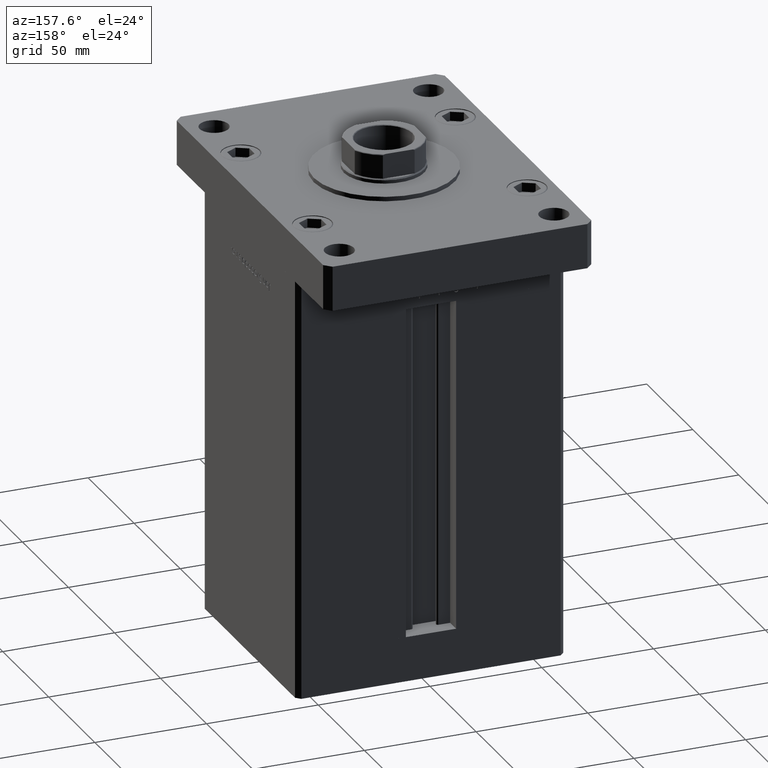
[diagram: clean part render]
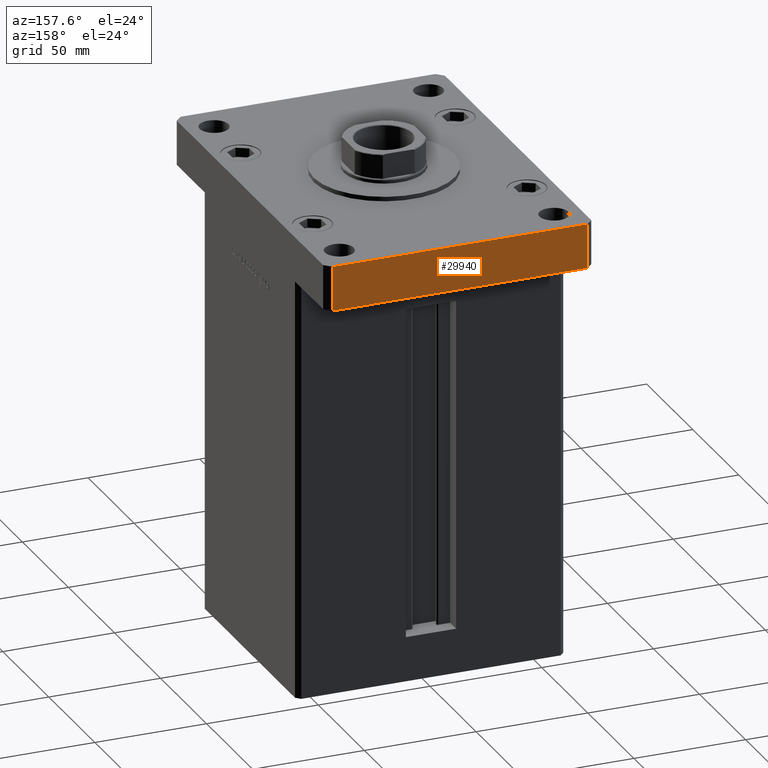
[diagram: same view with one face highlighted and labeled with its STEP entity id]
A machine part, auxiliary view. The second image highlights one B-rep face of the part: STEP entity #29940.
In plain terms, the highlighted planar face has unit normal (0, -1, 0).
Its self-contained STEP definition (entity closure, byte-faithful):
#6 = VECTOR ( 'NONE', #22627, 1000.000000000000000 ) ;
#460 = ORIENTED_EDGE ( 'NONE', *, *, #16832, .T. ) ;
#1599 = VERTEX_POINT ( 'NONE', #27948 ) ;
#1986 = DIRECTION ( 'NONE',  ( -0.000000000000000000, -0.000000000000000000, -1.000000000000000000 ) ) ;
#4120 = EDGE_CURVE ( 'NONE', #32782, #24047, #16553, .T. ) ;
#6539 = EDGE_CURVE ( 'NONE', #32782, #16891, #14512, .T. ) ;
#9714 = ORIENTED_EDGE ( 'NONE', *, *, #28668, .F. ) ;
#14512 = LINE ( 'NONE', #22670, #33188 ) ;
#15034 = ORIENTED_EDGE ( 'NONE', *, *, #6539, .T. ) ;
#15095 = PLANE ( 'NONE',  #41783 ) ;
#15267 = CARTESIAN_POINT ( 'NONE',  ( -57.00000000000003553, 82.50000000000000000, 20.00000000000000000 ) ) ;
#15627 = FACE_OUTER_BOUND ( 'NONE', #43064, .T. ) ;
#16553 = LINE ( 'NONE', #49495, #28000 ) ;
#16832 = EDGE_CURVE ( 'NONE', #16891, #1599, #42835, .T. ) ;
#16891 = VERTEX_POINT ( 'NONE', #28631 ) ;
#20907 = CARTESIAN_POINT ( 'NONE',  ( -57.00000000000003553, 82.50000000000000000, 20.00000000000000000 ) ) ;
#22627 = DIRECTION ( 'NONE',  ( -0.000000000000000000, -0.000000000000000000, -1.000000000000000000 ) ) ;
#22670 = CARTESIAN_POINT ( 'NONE',  ( 57.00000000000002132, 82.50000000000002842, 20.00000000000000000 ) ) ;
#23910 = DIRECTION ( 'NONE',  ( -1.000000000000000000, -2.434699615406043739E-16, 0.000000000000000000 ) ) ;
#24047 = VERTEX_POINT ( 'NONE', #20907 ) ;
#26705 = LINE ( 'NONE', #15267, #6 ) ;
#27948 = CARTESIAN_POINT ( 'NONE',  ( -57.00000000000003553, 82.50000000000000000, 0.000000000000000000 ) ) ;
#28000 = VECTOR ( 'NONE', #23910, 1000.000000000000000 ) ;
#28631 = CARTESIAN_POINT ( 'NONE',  ( 57.00000000000002132, 82.50000000000002842, 0.000000000000000000 ) ) ;
#28668 = EDGE_CURVE ( 'NONE', #24047, #1599, #26705, .T. ) ;
#29940 = ADVANCED_FACE ( 'NONE', ( #15627 ), #15095, .F. ) ;
#31696 = CARTESIAN_POINT ( 'NONE',  ( 57.00000000000002132, 82.50000000000002842, 20.00000000000000000 ) ) ;
#32226 = DIRECTION ( 'NONE',  ( 1.000000000000000000, 2.434699615406043739E-16, 0.000000000000000000 ) ) ;
#32782 = VERTEX_POINT ( 'NONE', #44809 ) ;
#33188 = VECTOR ( 'NONE', #1986, 1000.000000000000000 ) ;
#36564 = DIRECTION ( 'NONE',  ( 2.434699615406043739E-16, -1.000000000000000000, 0.000000000000000000 ) ) ;
#38743 = CARTESIAN_POINT ( 'NONE',  ( 57.00000000000002132, 82.50000000000002842, 0.000000000000000000 ) ) ;
#41783 = AXIS2_PLACEMENT_3D ( 'NONE', #31696, #36564, #32226 ) ;
#42835 = LINE ( 'NONE', #38743, #52785 ) ;
#43064 = EDGE_LOOP ( 'NONE', ( #460, #9714, #45483, #15034 ) ) ;
#44809 = CARTESIAN_POINT ( 'NONE',  ( 57.00000000000002132, 82.50000000000002842, 20.00000000000000000 ) ) ;
#45483 = ORIENTED_EDGE ( 'NONE', *, *, #4120, .F. ) ;
#49495 = CARTESIAN_POINT ( 'NONE',  ( 57.00000000000002132, 82.50000000000002842, 20.00000000000000000 ) ) ;
#51010 = DIRECTION ( 'NONE',  ( -1.000000000000000000, -2.434699615406043739E-16, 0.000000000000000000 ) ) ;
#52785 = VECTOR ( 'NONE', #51010, 1000.000000000000000 ) ;